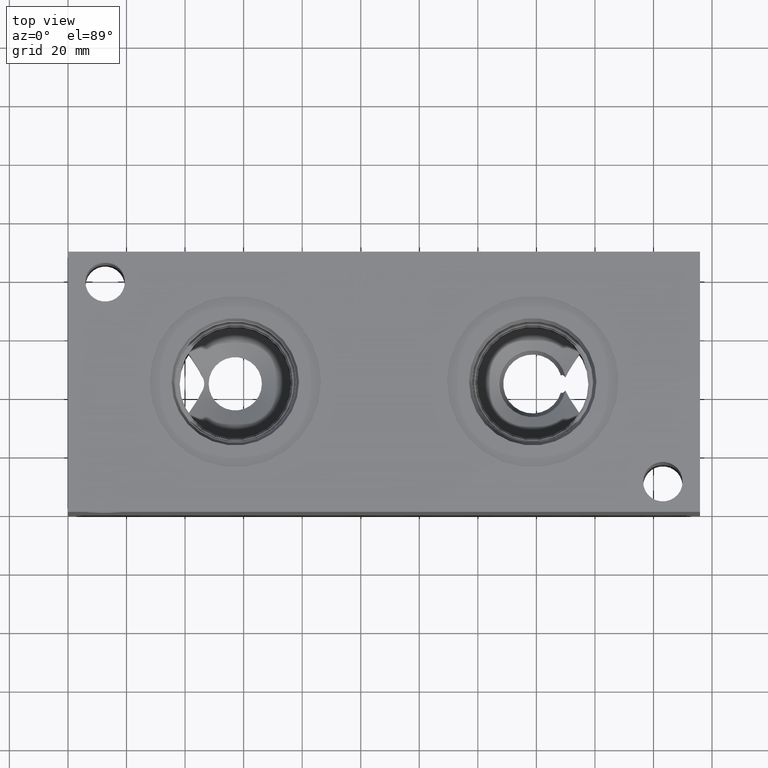
[diagram: clean part render]
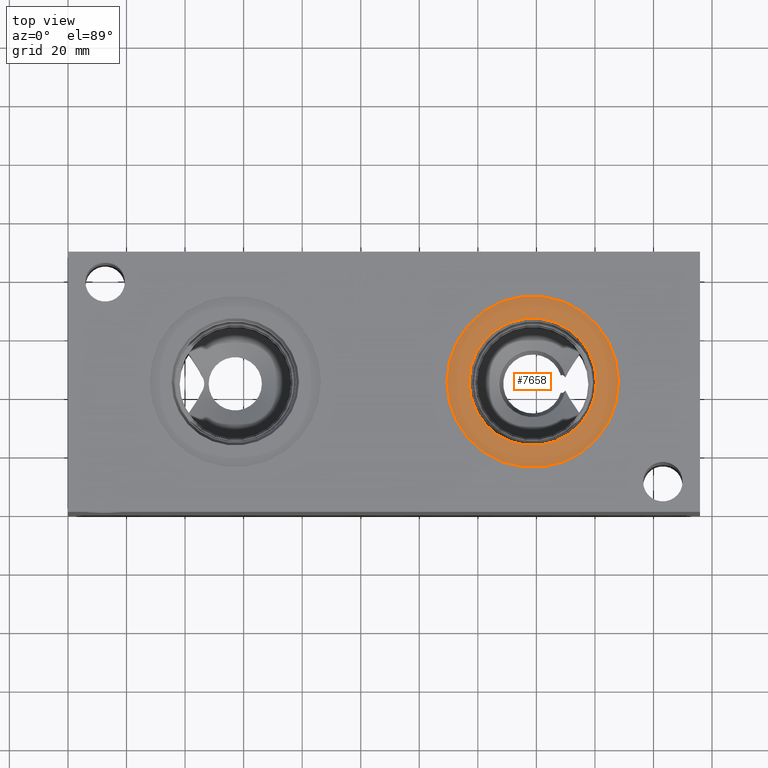
[diagram: same view with one face highlighted and labeled with its STEP entity id]
A machine part, top view. The second image highlights one B-rep face of the part: STEP entity #7658.
In plain terms, the highlighted planar face has unit normal (0, 0, 1).
Its self-contained STEP definition (entity closure, byte-faithful):
#151=CIRCLE('',#8036,29.2862);
#152=CIRCLE('',#8037,29.2862);
#153=CIRCLE('',#8038,21.7551);
#243=FACE_BOUND('',#1367,.T.);
#939=FACE_OUTER_BOUND('',#1366,.T.);
#1366=EDGE_LOOP('',(#6565,#6566));
#1367=EDGE_LOOP('',(#6567));
#3508=VERTEX_POINT('',#13220);
#3509=VERTEX_POINT('',#13221);
#3510=VERTEX_POINT('',#13224);
#4547=EDGE_CURVE('',#3508,#3509,#151,.T.);
#4548=EDGE_CURVE('',#3509,#3508,#152,.T.);
#4549=EDGE_CURVE('',#3510,#3510,#153,.T.);
#6565=ORIENTED_EDGE('',*,*,#4547,.T.);
#6566=ORIENTED_EDGE('',*,*,#4548,.T.);
#6567=ORIENTED_EDGE('',*,*,#4549,.F.);
#6992=PLANE('',#8035);
#7658=ADVANCED_FACE('',(#939,#243),#6992,.T.);
#8035=AXIS2_PLACEMENT_3D('',#13219,#9457,#9458);
#8036=AXIS2_PLACEMENT_3D('',#13222,#9459,#9460);
#8037=AXIS2_PLACEMENT_3D('',#13223,#9461,#9462);
#8038=AXIS2_PLACEMENT_3D('',#13225,#9463,#9464);
#9457=DIRECTION('center_axis',(0.,0.,1.));
#9458=DIRECTION('ref_axis',(1.,0.,0.));
#9459=DIRECTION('center_axis',(0.,0.,1.));
#9460=DIRECTION('ref_axis',(1.,0.,0.));
#9461=DIRECTION('center_axis',(0.,0.,1.));
#9462=DIRECTION('ref_axis',(1.,0.,0.));
#9463=DIRECTION('center_axis',(0.,0.,1.));
#9464=DIRECTION('ref_axis',(1.,0.,0.));
#13219=CARTESIAN_POINT('Origin',(158.75,44.45,88.1126));
#13220=CARTESIAN_POINT('',(188.0362,44.45,88.1126));
#13221=CARTESIAN_POINT('',(129.4638,44.45,88.1126));
#13222=CARTESIAN_POINT('Origin',(158.75,44.45,88.1126));
#13223=CARTESIAN_POINT('Origin',(158.75,44.45,88.1126));
#13224=CARTESIAN_POINT('',(136.9949,44.45,88.1126));
#13225=CARTESIAN_POINT('Origin',(158.75,44.45,88.1126));